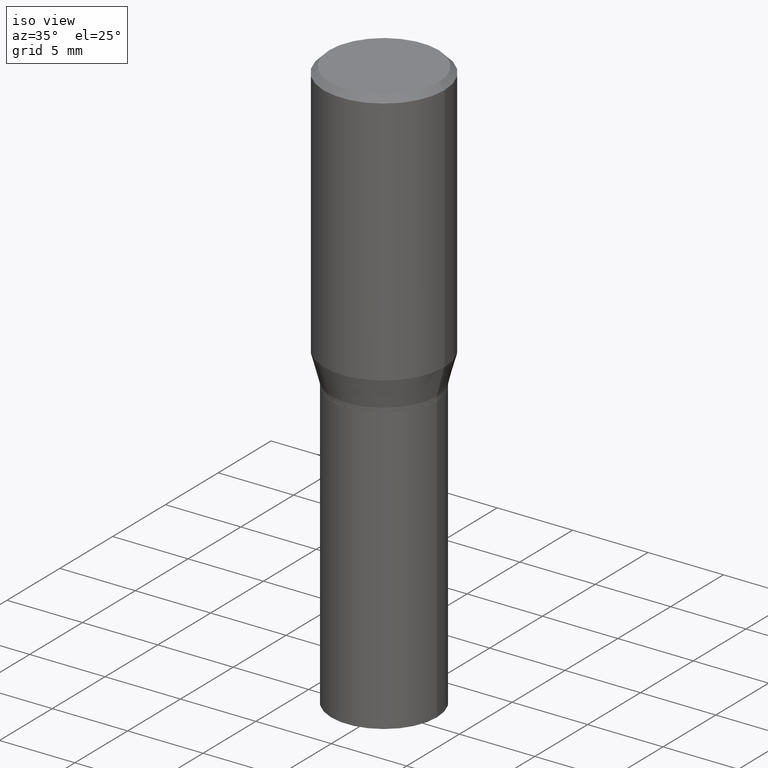
[diagram: clean part render]
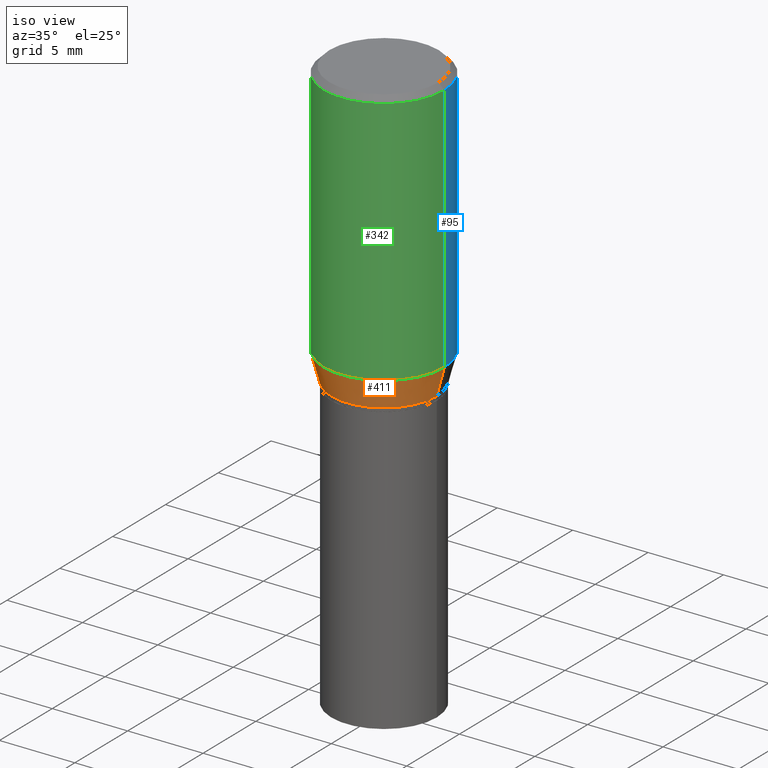
[diagram: same view with three faces highlighted in distinct colors, each labeled with its STEP entity id]
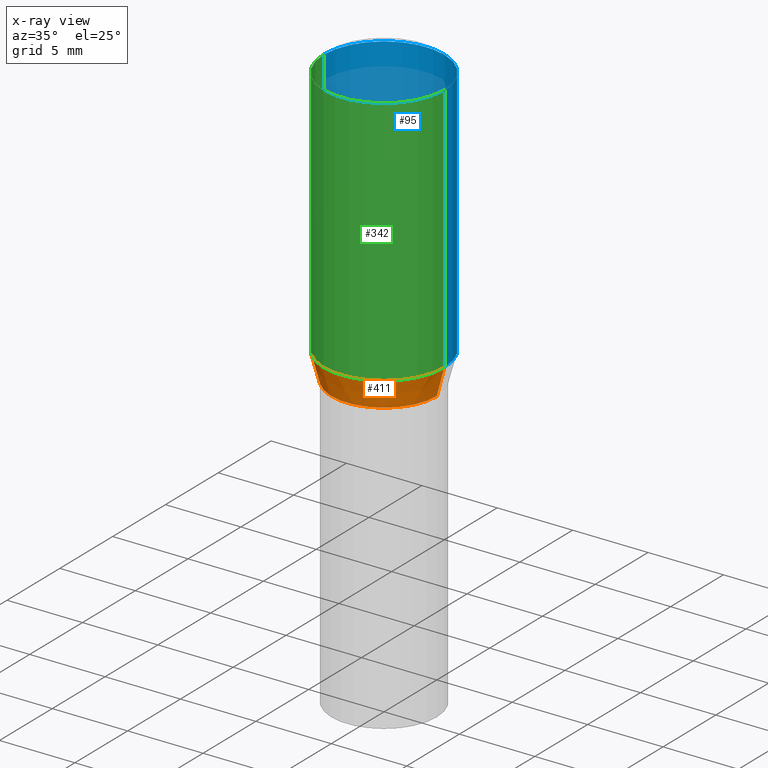
[diagram: x-ray of the same camera — body ghosted, the three highlighted faces saturated]
A machine part, iso view with three faces highlighted in distinct colors.
The next image is the same camera in x-ray (body ghosted, the three faces saturated) — at least one of them is partly hidden behind the body in this view.
Their STEP definitions:

[orange] entity #411 — the highlighted conical surface has half-angle 15 deg.
#6 = DIRECTION ( 'NONE',  ( -2.445468806185136597E-29, 3.491481338843145583E-15, 1.000000000000000000 ) ) ;
#7 = CARTESIAN_POINT ( 'NONE',  ( -0.1575000000000000289, -1.214875745319705316E-15, -0.6684785990908935771 ) ) ;
#54 = EDGE_CURVE ( 'NONE', #248, #250, #299, .T. ) ;
#81 = DIRECTION ( 'NONE',  ( 1.000000000000000000, -6.982962677686267499E-15, 0.000000000000000000 ) ) ;
#91 = DIRECTION ( 'NONE',  ( -2.445468806185136597E-29, 3.491481338843145583E-15, 1.000000000000000000 ) ) ;
#110 = CARTESIAN_POINT ( 'NONE',  ( 0.1377999999999999781, -3.552931410406782114E-15, -0.7420000000000002149 ) ) ;
#112 = CONICAL_SURFACE ( 'NONE', #420, 0.1377999999999999781, 0.2617993877991510177 ) ;
#128 = VECTOR ( 'NONE', #357, 39.37007874015748143 ) ;
#161 = DIRECTION ( 'NONE',  ( 1.000000000000000000, -6.982962677686267499E-15, 0.000000000000000000 ) ) ;
#163 = CARTESIAN_POINT ( 'NONE',  ( 0.1575000000000000289, -3.433797175877450400E-15, -0.6684785990908935771 ) ) ;
#188 = ORIENTED_EDGE ( 'NONE', *, *, #400, .T. ) ;
#189 = CARTESIAN_POINT ( 'NONE',  ( 1.634743561679119835E-29, -2.333980554141863708E-15, -0.6684785990908935771 ) ) ;
#192 = CIRCLE ( 'NONE', #370, 0.1377999999999999781 ) ;
#197 = ORIENTED_EDGE ( 'NONE', *, *, #54, .F. ) ;
#202 = CARTESIAN_POINT ( 'NONE',  ( 0.1377999999999999781, -3.552931410406782114E-15, -0.7420000000000002149 ) ) ;
#208 = EDGE_CURVE ( 'NONE', #382, #250, #323, .T. ) ;
#214 = VERTEX_POINT ( 'NONE', #224 ) ;
#224 = CARTESIAN_POINT ( 'NONE',  ( -0.1377999999999999781, -1.413213504431950829E-15, -0.7420000000000002149 ) ) ;
#231 = DIRECTION ( 'NONE',  ( -2.445468806185136597E-29, 3.491481338843145583E-15, 1.000000000000000000 ) ) ;
#248 = VERTEX_POINT ( 'NONE', #7 ) ;
#250 = VERTEX_POINT ( 'NONE', #163 ) ;
#269 = CARTESIAN_POINT ( 'NONE',  ( 1.814537854189371548E-29, -2.590679153421614242E-15, -0.7420000000000002149 ) ) ;
#278 = AXIS2_PLACEMENT_3D ( 'NONE', #189, #6, #161 ) ;
#291 = LINE ( 'NONE', #390, #345 ) ;
#292 = ORIENTED_EDGE ( 'NONE', *, *, #208, .T. ) ;
#299 = CIRCLE ( 'NONE', #278, 0.1575000000000000289 ) ;
#322 = EDGE_CURVE ( 'NONE', #214, #248, #291, .T. ) ;
#323 = LINE ( 'NONE', #110, #128 ) ;
#345 = VECTOR ( 'NONE', #460, 39.37007874015748143 ) ;
#357 = DIRECTION ( 'NONE',  ( 0.2588190451025222938, 1.565188264969614671E-15, 0.9659258262890678681 ) ) ;
#367 = FACE_OUTER_BOUND ( 'NONE', #388, .T. ) ;
#370 = AXIS2_PLACEMENT_3D ( 'NONE', #269, #231, #410 ) ;
#382 = VERTEX_POINT ( 'NONE', #202 ) ;
#383 = ORIENTED_EDGE ( 'NONE', *, *, #322, .F. ) ;
#388 = EDGE_LOOP ( 'NONE', ( #383, #188, #292, #197 ) ) ;
#390 = CARTESIAN_POINT ( 'NONE',  ( -0.1377999999999999781, -1.611551263544196737E-15, -0.7420000000000002149 ) ) ;
#400 = EDGE_CURVE ( 'NONE', #214, #382, #192, .T. ) ;
#410 = DIRECTION ( 'NONE',  ( 1.000000000000000000, -6.982962677686267499E-15, 0.000000000000000000 ) ) ;
#411 = ADVANCED_FACE ( 'NONE', ( #367 ), #112, .T. ) ;
#417 = CARTESIAN_POINT ( 'NONE',  ( 1.814537854189371548E-29, -2.590679153421614242E-15, -0.7420000000000002149 ) ) ;
#420 = AXIS2_PLACEMENT_3D ( 'NONE', #417, #91, #81 ) ;
#460 = DIRECTION ( 'NONE',  ( -0.2588190451025222938, 5.211531920934555775E-15, 0.9659258262890678681 ) ) ;

[blue] entity #95 — the highlighted cylindrical surface (partial cylindrical patch) has radius 4.0005 mm, axis along (-0, 0, 1).
#5 = CIRCLE ( 'NONE', #394, 0.1575000000000000289 ) ;
#7 = CARTESIAN_POINT ( 'NONE',  ( -0.1575000000000000289, -1.214875745319705316E-15, -0.6684785990908935771 ) ) ;
#16 = CYLINDRICAL_SURFACE ( 'NONE', #437, 0.1575000000000000289 ) ;
#38 = ORIENTED_EDGE ( 'NONE', *, *, #377, .T. ) ;
#53 = DIRECTION ( 'NONE',  ( 1.000000000000000000, -6.982962677686267499E-15, 4.876176775795935232E-29 ) ) ;
#55 = LINE ( 'NONE', #318, #78 ) ;
#65 = DIRECTION ( 'NONE',  ( -2.445468806185136877E-29, 3.491481338843145188E-15, 1.000000000000000000 ) ) ;
#66 = DIRECTION ( 'NONE',  ( -2.445468806185136877E-29, 3.491481338843145188E-15, 1.000000000000000000 ) ) ;
#78 = VECTOR ( 'NONE', #65, 39.37007874015748143 ) ;
#82 = CARTESIAN_POINT ( 'NONE',  ( 3.668203209277705088E-31, -5.237222008264718399E-17, -0.01499999999999999944 ) ) ;
#84 = CARTESIAN_POINT ( 'NONE',  ( 0.000000000000000000, 0.000000000000000000, 0.000000000000000000 ) ) ;
#88 = DIRECTION ( 'NONE',  ( -2.445468806185136597E-29, 3.491481338843145583E-15, 1.000000000000000000 ) ) ;
#95 = ADVANCED_FACE ( 'NONE', ( #409 ), #16, .T. ) ;
#136 = AXIS2_PLACEMENT_3D ( 'NONE', #82, #195, #263 ) ;
#140 = EDGE_CURVE ( 'NONE', #363, #286, #452, .T. ) ;
#147 = CARTESIAN_POINT ( 'NONE',  ( -0.1575000000000000011, -7.407157829009734663E-17, -0.01499999999999999944 ) ) ;
#162 = ORIENTED_EDGE ( 'NONE', *, *, #317, .F. ) ;
#163 = CARTESIAN_POINT ( 'NONE',  ( 0.1575000000000000289, -3.433797175877450400E-15, -0.6684785990908935771 ) ) ;
#172 = VECTOR ( 'NONE', #66, 39.37007874015748143 ) ;
#173 = EDGE_CURVE ( 'NONE', #248, #286, #425, .T. ) ;
#195 = DIRECTION ( 'NONE',  ( -2.445468806185136597E-29, 3.491481338843145583E-15, 1.000000000000000000 ) ) ;
#209 = ORIENTED_EDGE ( 'NONE', *, *, #140, .F. ) ;
#212 = ORIENTED_EDGE ( 'NONE', *, *, #173, .T. ) ;
#238 = CARTESIAN_POINT ( 'NONE',  ( 1.634743561679119835E-29, -2.333980554141863708E-15, -0.6684785990908935771 ) ) ;
#248 = VERTEX_POINT ( 'NONE', #7 ) ;
#250 = VERTEX_POINT ( 'NONE', #163 ) ;
#263 = DIRECTION ( 'NONE',  ( 1.000000000000000000, -6.982962677686265922E-15, 0.000000000000000000 ) ) ;
#286 = VERTEX_POINT ( 'NONE', #147 ) ;
#304 = DIRECTION ( 'NONE',  ( -2.445468806185136597E-29, 3.491481338843145583E-15, 1.000000000000000000 ) ) ;
#311 = CARTESIAN_POINT ( 'NONE',  ( 0.1575000000000000011, -1.152188841818234165E-15, -0.01499999999999999944 ) ) ;
#317 = EDGE_CURVE ( 'NONE', #250, #363, #55, .T. ) ;
#318 = CARTESIAN_POINT ( 'NONE',  ( 0.1575000000000000289, -1.099816621735587283E-15, 7.679978421878599434E-30 ) ) ;
#354 = EDGE_LOOP ( 'NONE', ( #38, #212, #209, #162 ) ) ;
#363 = VERTEX_POINT ( 'NONE', #311 ) ;
#377 = EDGE_CURVE ( 'NONE', #250, #248, #5, .T. ) ;
#392 = CARTESIAN_POINT ( 'NONE',  ( -0.1575000000000000289, 1.119104808822157998E-15, -7.747322767151478386E-30 ) ) ;
#394 = AXIS2_PLACEMENT_3D ( 'NONE', #238, #88, #449 ) ;
#409 = FACE_OUTER_BOUND ( 'NONE', #354, .T. ) ;
#425 = LINE ( 'NONE', #392, #172 ) ;
#437 = AXIS2_PLACEMENT_3D ( 'NONE', #84, #304, #53 ) ;
#449 = DIRECTION ( 'NONE',  ( 1.000000000000000000, -6.982962677686267499E-15, 0.000000000000000000 ) ) ;
#452 = CIRCLE ( 'NONE', #136, 0.1575000000000000011 ) ;

[green] entity #342 — the highlighted cylindrical surface (partial cylindrical patch) has radius 4.0005 mm, axis along (-0, 0, 1).
#6 = DIRECTION ( 'NONE',  ( -2.445468806185136597E-29, 3.491481338843145583E-15, 1.000000000000000000 ) ) ;
#7 = CARTESIAN_POINT ( 'NONE',  ( -0.1575000000000000289, -1.214875745319705316E-15, -0.6684785990908935771 ) ) ;
#10 = AXIS2_PLACEMENT_3D ( 'NONE', #267, #83, #96 ) ;
#19 = DIRECTION ( 'NONE',  ( -2.445468806185136597E-29, 3.491481338843145583E-15, 1.000000000000000000 ) ) ;
#41 = ORIENTED_EDGE ( 'NONE', *, *, #440, .F. ) ;
#54 = EDGE_CURVE ( 'NONE', #248, #250, #299, .T. ) ;
#55 = LINE ( 'NONE', #318, #78 ) ;
#65 = DIRECTION ( 'NONE',  ( -2.445468806185136877E-29, 3.491481338843145188E-15, 1.000000000000000000 ) ) ;
#66 = DIRECTION ( 'NONE',  ( -2.445468806185136877E-29, 3.491481338843145188E-15, 1.000000000000000000 ) ) ;
#74 = CIRCLE ( 'NONE', #259, 0.1575000000000000011 ) ;
#78 = VECTOR ( 'NONE', #65, 39.37007874015748143 ) ;
#83 = DIRECTION ( 'NONE',  ( -2.445468806185136597E-29, 3.491481338843145583E-15, 1.000000000000000000 ) ) ;
#92 = ORIENTED_EDGE ( 'NONE', *, *, #173, .F. ) ;
#96 = DIRECTION ( 'NONE',  ( 1.000000000000000000, -6.982962677686267499E-15, 4.876176775795935232E-29 ) ) ;
#106 = ORIENTED_EDGE ( 'NONE', *, *, #54, .T. ) ;
#147 = CARTESIAN_POINT ( 'NONE',  ( -0.1575000000000000011, -7.407157829009734663E-17, -0.01499999999999999944 ) ) ;
#161 = DIRECTION ( 'NONE',  ( 1.000000000000000000, -6.982962677686267499E-15, 0.000000000000000000 ) ) ;
#163 = CARTESIAN_POINT ( 'NONE',  ( 0.1575000000000000289, -3.433797175877450400E-15, -0.6684785990908935771 ) ) ;
#172 = VECTOR ( 'NONE', #66, 39.37007874015748143 ) ;
#173 = EDGE_CURVE ( 'NONE', #248, #286, #425, .T. ) ;
#189 = CARTESIAN_POINT ( 'NONE',  ( 1.634743561679119835E-29, -2.333980554141863708E-15, -0.6684785990908935771 ) ) ;
#198 = CARTESIAN_POINT ( 'NONE',  ( 3.668203209277705088E-31, -5.237222008264718399E-17, -0.01499999999999999944 ) ) ;
#241 = DIRECTION ( 'NONE',  ( 1.000000000000000000, -6.982962677686265922E-15, 0.000000000000000000 ) ) ;
#248 = VERTEX_POINT ( 'NONE', #7 ) ;
#250 = VERTEX_POINT ( 'NONE', #163 ) ;
#259 = AXIS2_PLACEMENT_3D ( 'NONE', #198, #19, #241 ) ;
#267 = CARTESIAN_POINT ( 'NONE',  ( 0.000000000000000000, 0.000000000000000000, 0.000000000000000000 ) ) ;
#278 = AXIS2_PLACEMENT_3D ( 'NONE', #189, #6, #161 ) ;
#286 = VERTEX_POINT ( 'NONE', #147 ) ;
#299 = CIRCLE ( 'NONE', #278, 0.1575000000000000289 ) ;
#301 = FACE_OUTER_BOUND ( 'NONE', #459, .T. ) ;
#311 = CARTESIAN_POINT ( 'NONE',  ( 0.1575000000000000011, -1.152188841818234165E-15, -0.01499999999999999944 ) ) ;
#317 = EDGE_CURVE ( 'NONE', #250, #363, #55, .T. ) ;
#318 = CARTESIAN_POINT ( 'NONE',  ( 0.1575000000000000289, -1.099816621735587283E-15, 7.679978421878599434E-30 ) ) ;
#342 = ADVANCED_FACE ( 'NONE', ( #301 ), #439, .T. ) ;
#362 = ORIENTED_EDGE ( 'NONE', *, *, #317, .T. ) ;
#363 = VERTEX_POINT ( 'NONE', #311 ) ;
#392 = CARTESIAN_POINT ( 'NONE',  ( -0.1575000000000000289, 1.119104808822157998E-15, -7.747322767151478386E-30 ) ) ;
#425 = LINE ( 'NONE', #392, #172 ) ;
#439 = CYLINDRICAL_SURFACE ( 'NONE', #10, 0.1575000000000000289 ) ;
#440 = EDGE_CURVE ( 'NONE', #286, #363, #74, .T. ) ;
#459 = EDGE_LOOP ( 'NONE', ( #92, #106, #362, #41 ) ) ;